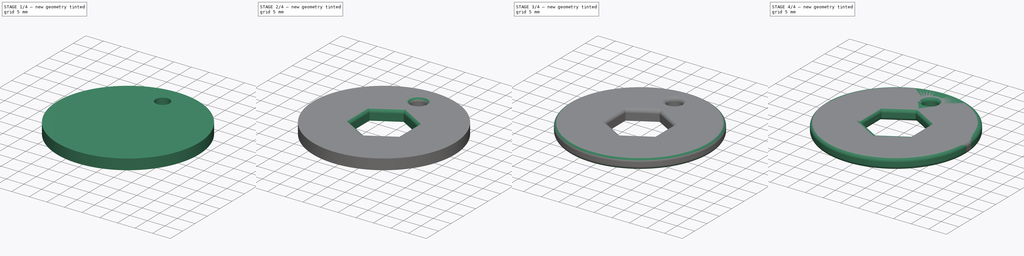
[diagram: build sequence overview — one tinted view per stage of 4, left to right]
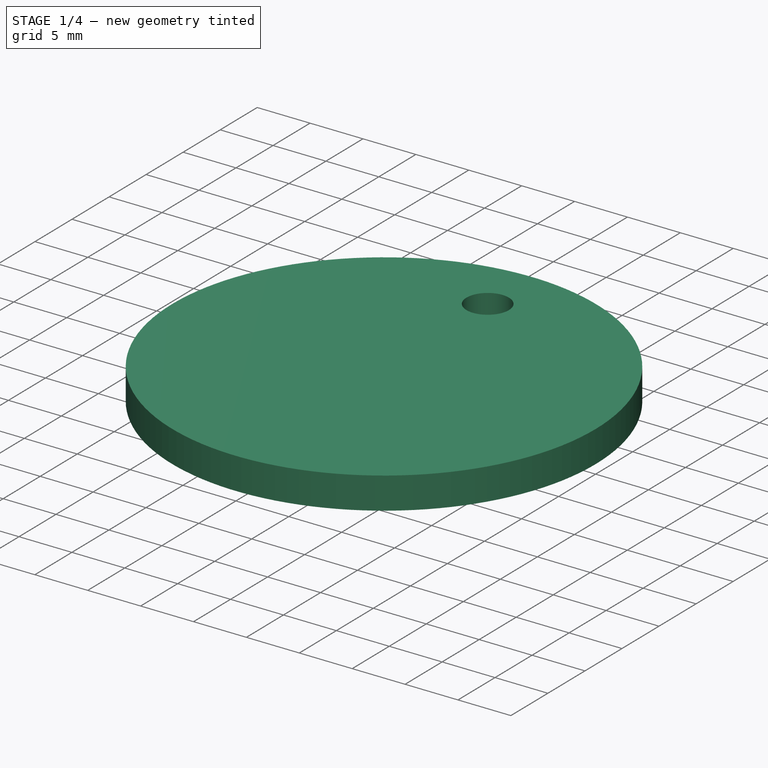
[diagram: stage 1 of 4 — iso view after this stage's code; geometry added in this stage tinted green]
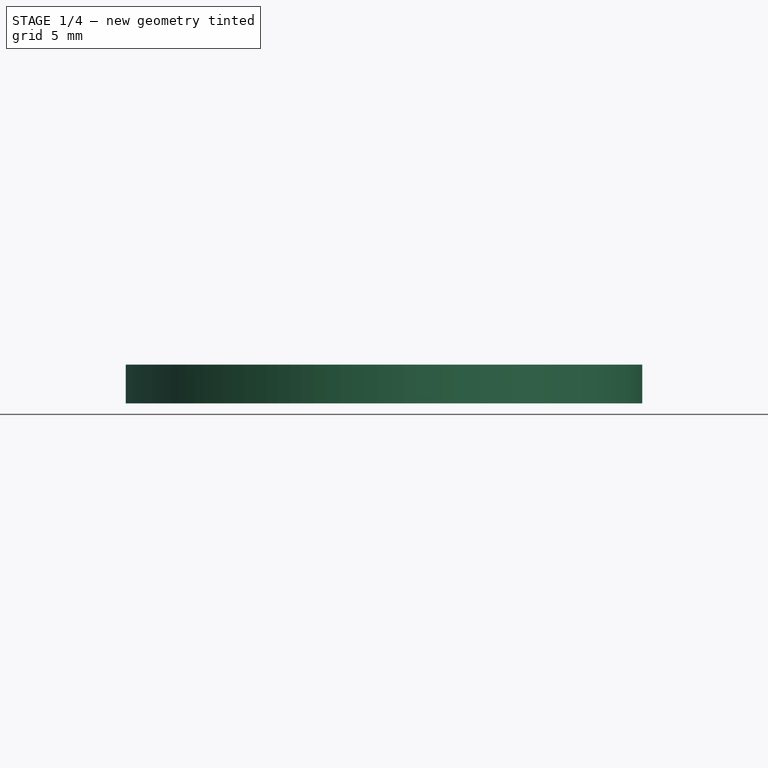
[diagram: stage 1 of 4 — front view after this stage's code; geometry added in this stage tinted green]
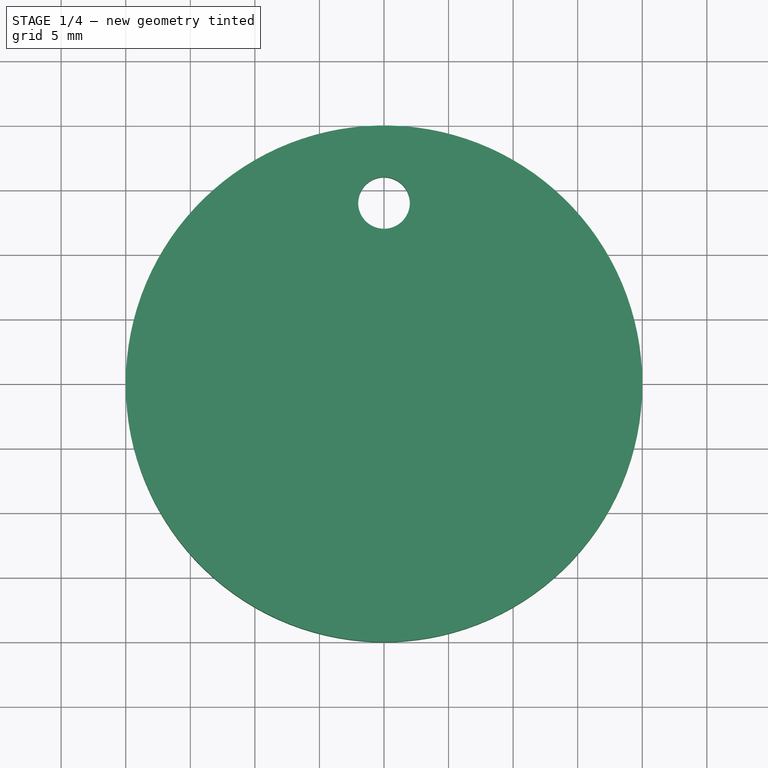
[diagram: stage 1 of 4 — top view after this stage's code; geometry added in this stage tinted green]
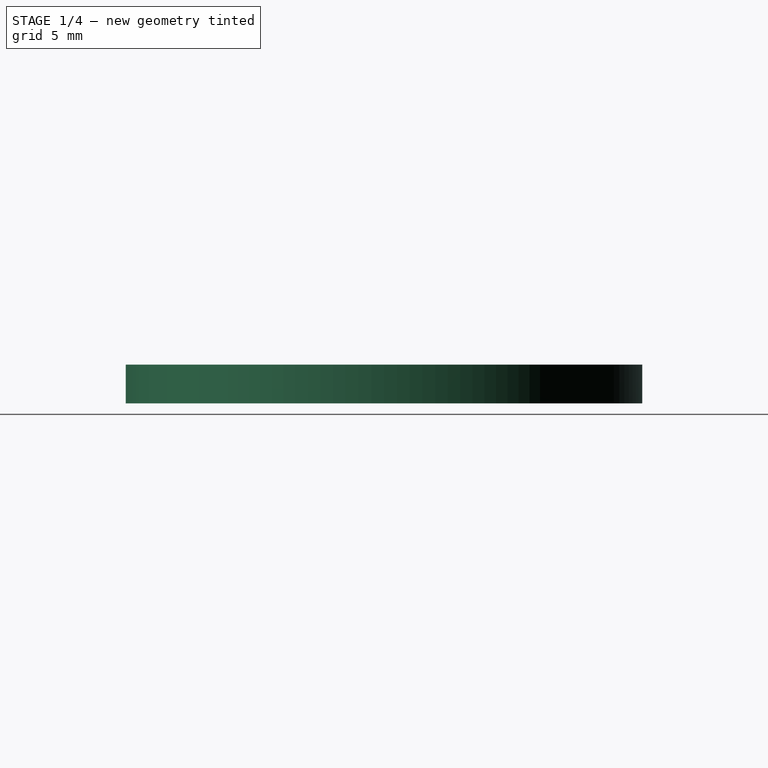
[diagram: stage 1 of 4 — right view after this stage's code; geometry added in this stage tinted green]
FCSTD DOCUMENT  (FreeCAD 0.15R4671 (Git))
Label: T5-ej1
License: All rights reserved
LicenseURL: http://es.wikipedia.org/wiki/Todos_los_derechos_reservados
objects: PartDesign::Fillet×6, Part::Cylinder×2, Part::Cut×2, Part::Feature×2, Sketcher::SketchObject×1, PartDesign::Pocket×1, App::DocumentObjectGroup×1
note: 15 computed .brp shape members not serialized (recipe doc carries the construction recipe); baked Part::Feature solids carry a one-line shape summary decoded from their .brp

FEATURE [Part::Cylinder] Cylinder  label="ficha"
  Angle = 360
  Height = 3
  Radius = 20
FEATURE [Part::Cylinder] Cylinder001  label="Cilindro"
  Angle = 360
  Height = 5
  Placement = pos=(0,14,0) rot=(0,0,1;0rad)
  Radius = 2
FEATURE [Part::Cut] Cut
  Base = -> Cylinder
  Tool = -> Cylinder001
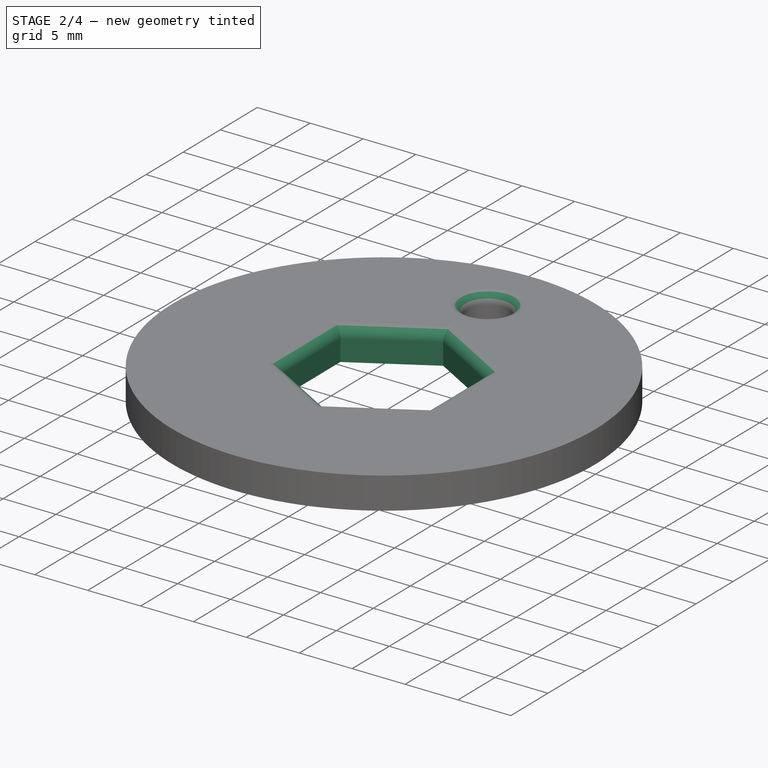
[diagram: stage 2 of 4 — iso view after this stage's code; geometry added in this stage tinted green]
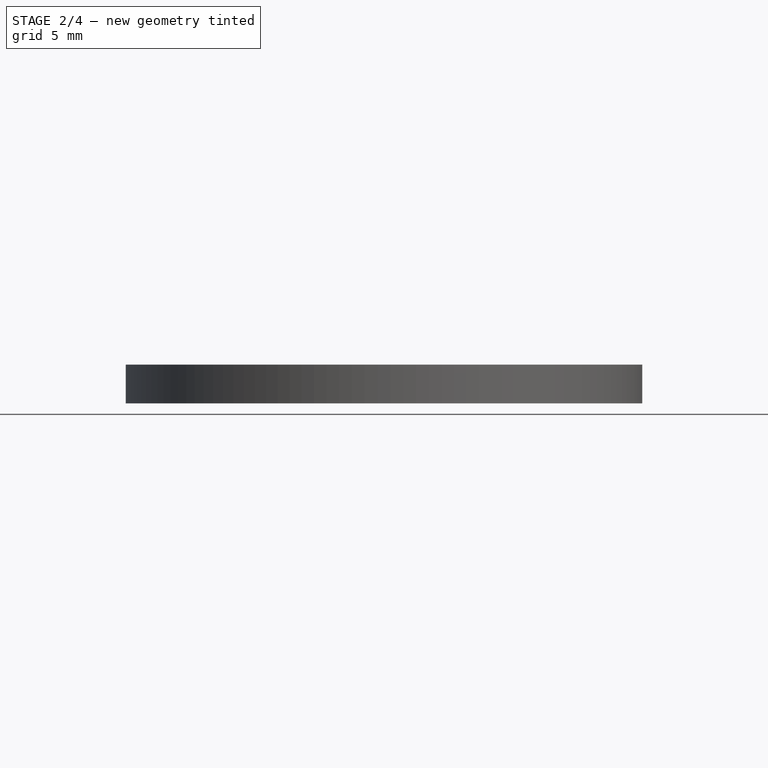
[diagram: stage 2 of 4 — front view after this stage's code; geometry added in this stage tinted green]
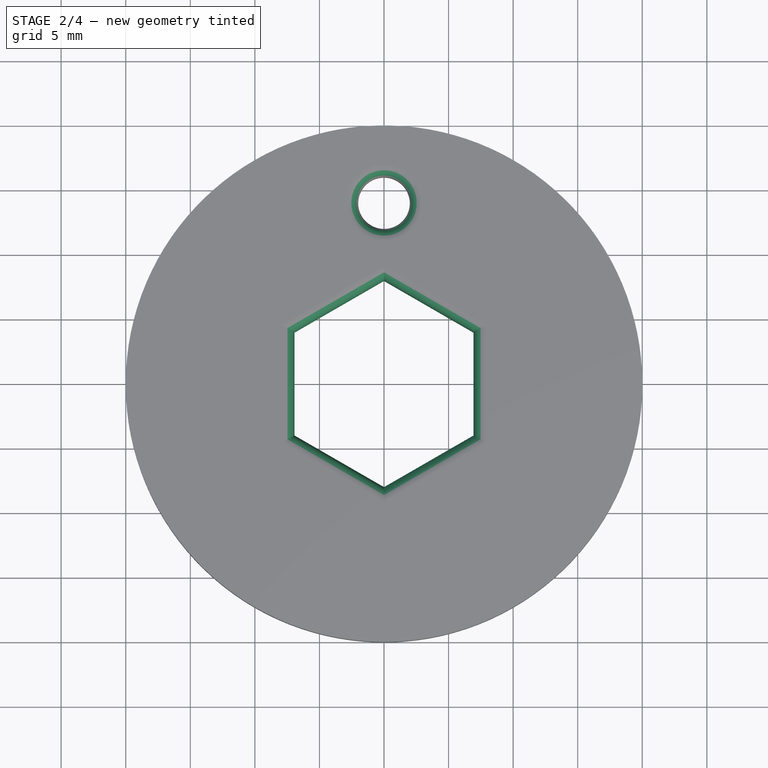
[diagram: stage 2 of 4 — top view after this stage's code; geometry added in this stage tinted green]
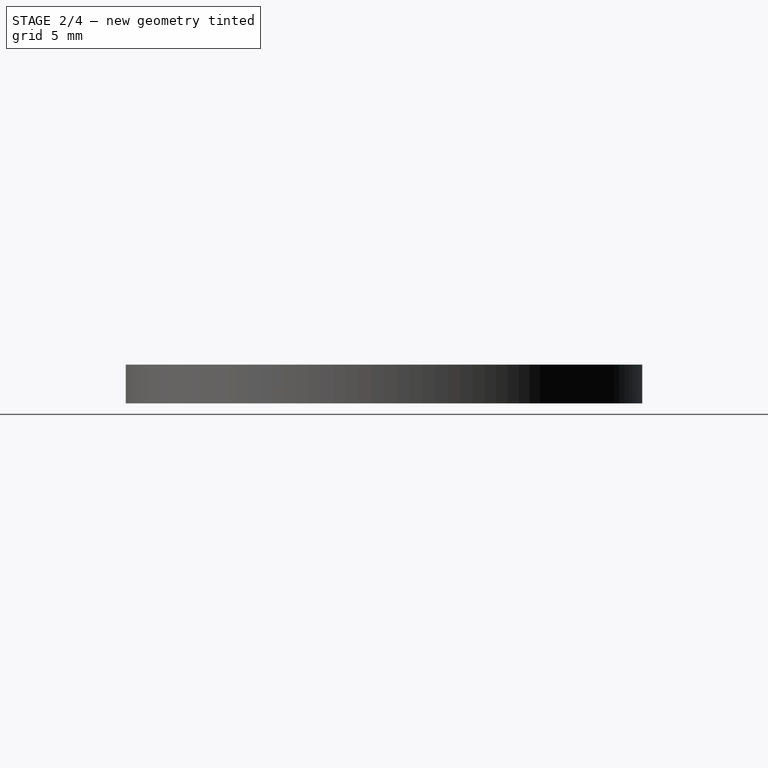
[diagram: stage 2 of 4 — right view after this stage's code; geometry added in this stage tinted green]
FEATURE [Sketcher::SketchObject] Sketch
  Placement = pos=(0,0,3) rot=(0,0,1;0rad)
  Support = -> Cut [Face2]
  sketch-geometry (7):
    g0: LineSegment StartX=-6.9282 StartY=-4 StartZ=0 EndX=0 EndY=-8 EndZ=0
    g1: LineSegment StartX=0 StartY=-8 StartZ=0 EndX=6.9282 EndY=-4 EndZ=0
    g2: LineSegment StartX=6.9282 StartY=-4 StartZ=0 EndX=6.9282 EndY=4 EndZ=0
    g3: LineSegment StartX=6.9282 StartY=4 StartZ=0 EndX=0 EndY=8 EndZ=0
    g4: LineSegment StartX=0 StartY=8 StartZ=0 EndX=-6.9282 EndY=4 EndZ=0
    g5: LineSegment StartX=-6.9282 StartY=4 StartZ=0 EndX=-6.9282 EndY=-4 EndZ=0
    g6: Circle [constr] CenterX=0 CenterY=0 CenterZ=0 NormalX=0 NormalY=0 NormalZ=1 Radius=8
  constraints (16):
    c: Coincident(g0,g1)
    c: Coincident(g1,g2)
    c: Coincident(g2,g3)
    c: Coincident(g3,g4)
    c: Coincident(g4,g5)
    c: Coincident(g5,g0)
    c: Equal(g0, g1-g5) x5
    c: PointOnObject(g0,g6)
    c: PointOnObject(g1,g6)
    c: PointOnObject(g2,g6)
    c: PointOnObject(g3,g6)
    c: PointOnObject(g4,g6)
    c: PointOnObject(g5,g6)
    c: Coincident(g6,g-1)
    c: Radius(g6) = 8
    c: PointOnObject(g3,g-2)
FEATURE [PartDesign::Pocket] Pocket
  Length = 5
  Sketch = -> Sketch
  Type = 1
FEATURE [PartDesign::Fillet] Fillet
  Base = -> Pocket [Edge4,Edge9,Edge8,Edge7,Edge6,Edge5]
  Radius = 1
FEATURE [PartDesign::Fillet] Fillet001
  Base = -> Fillet [Edge8]
  Radius = 1
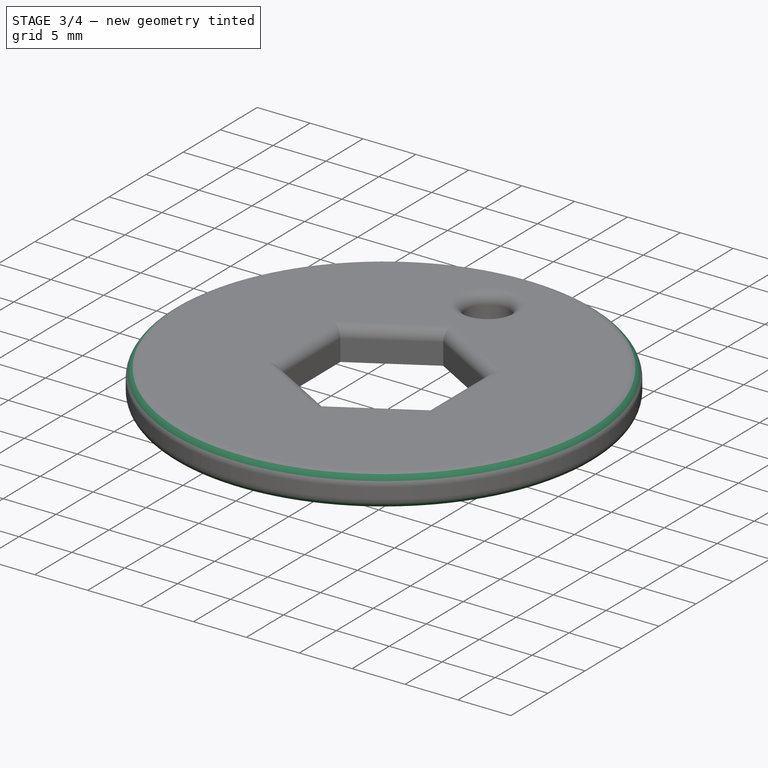
[diagram: stage 3 of 4 — iso view after this stage's code; geometry added in this stage tinted green]
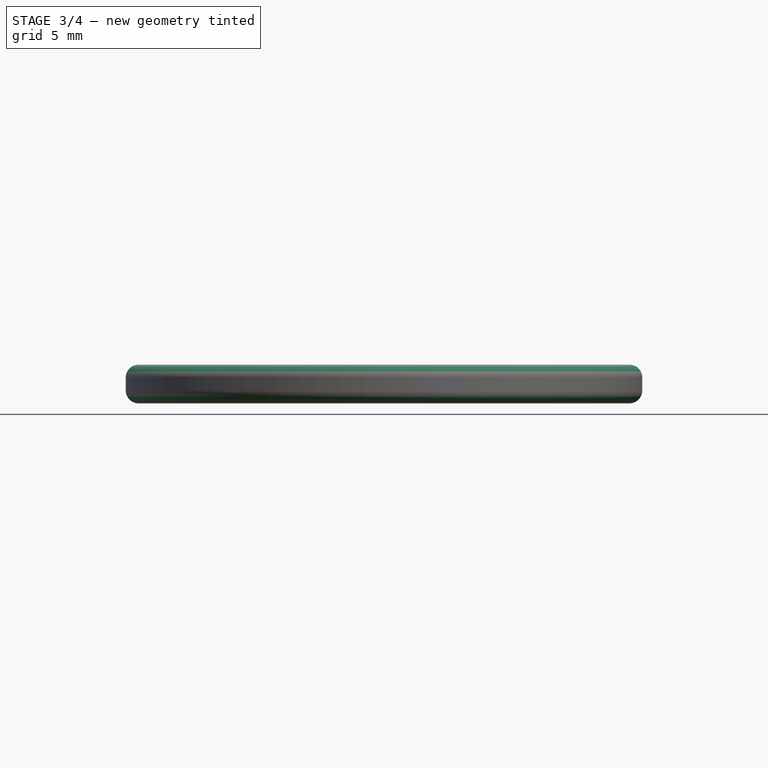
[diagram: stage 3 of 4 — front view after this stage's code; geometry added in this stage tinted green]
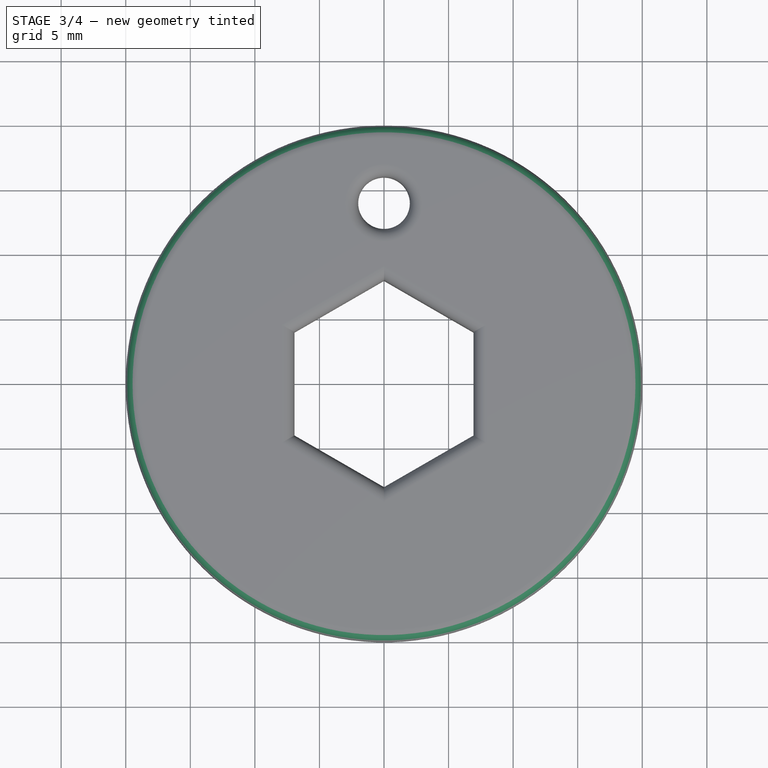
[diagram: stage 3 of 4 — top view after this stage's code; geometry added in this stage tinted green]
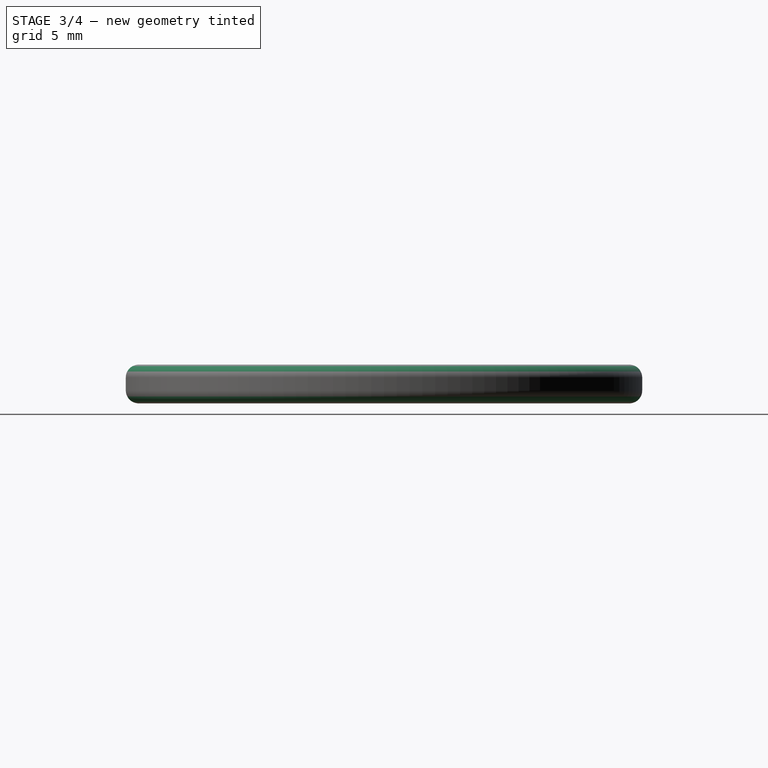
[diagram: stage 3 of 4 — right view after this stage's code; geometry added in this stage tinted green]
FEATURE [PartDesign::Fillet] Fillet002
  Base = -> Fillet001 [Edge8]
  Radius = 1
FEATURE [PartDesign::Fillet] Fillet003
  Base = -> Fillet002 [Edge26]
  Radius = 1
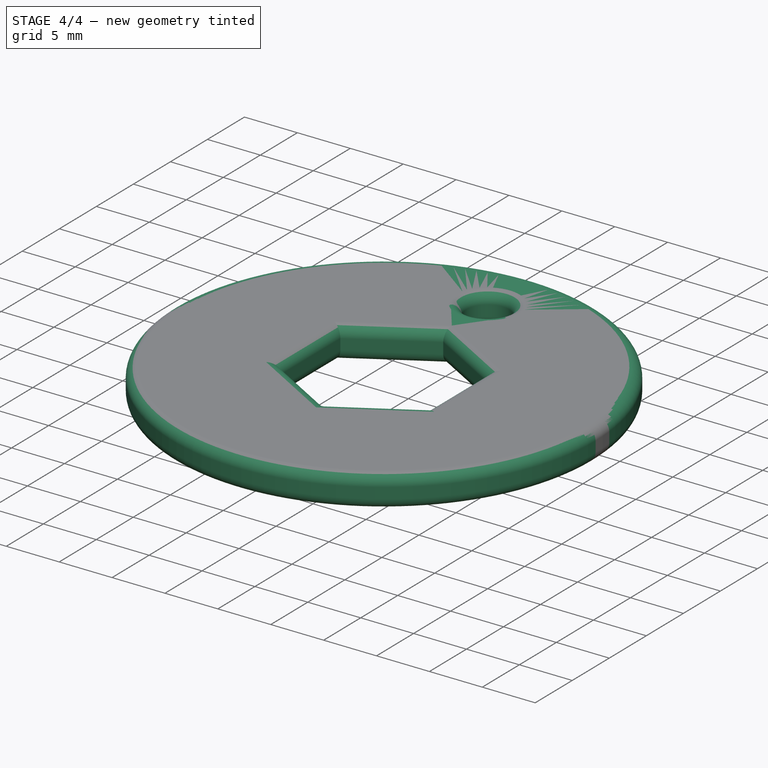
[diagram: stage 4 of 4 — iso view after this stage's code; geometry added in this stage tinted green]
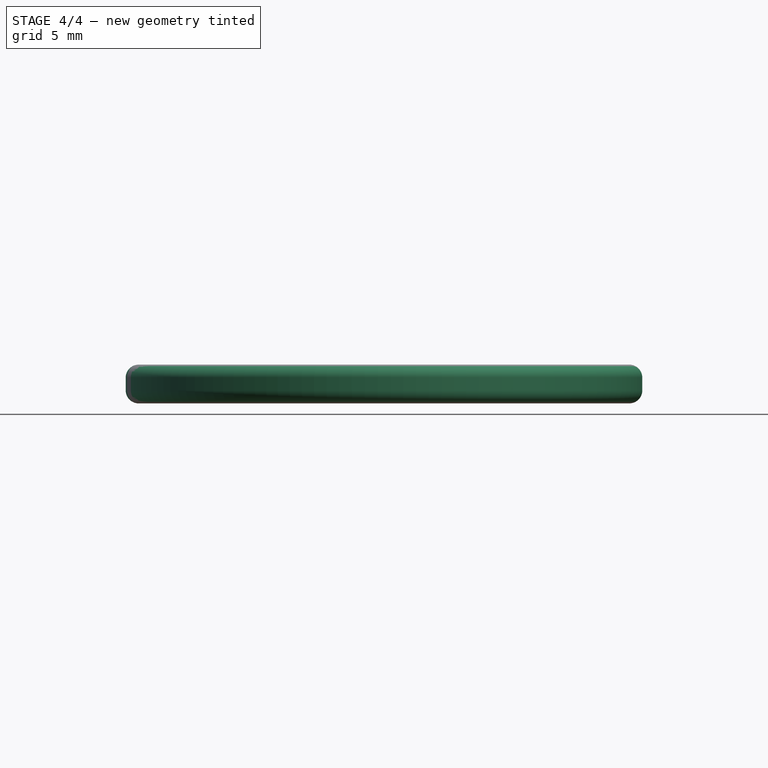
[diagram: stage 4 of 4 — front view after this stage's code; geometry added in this stage tinted green]
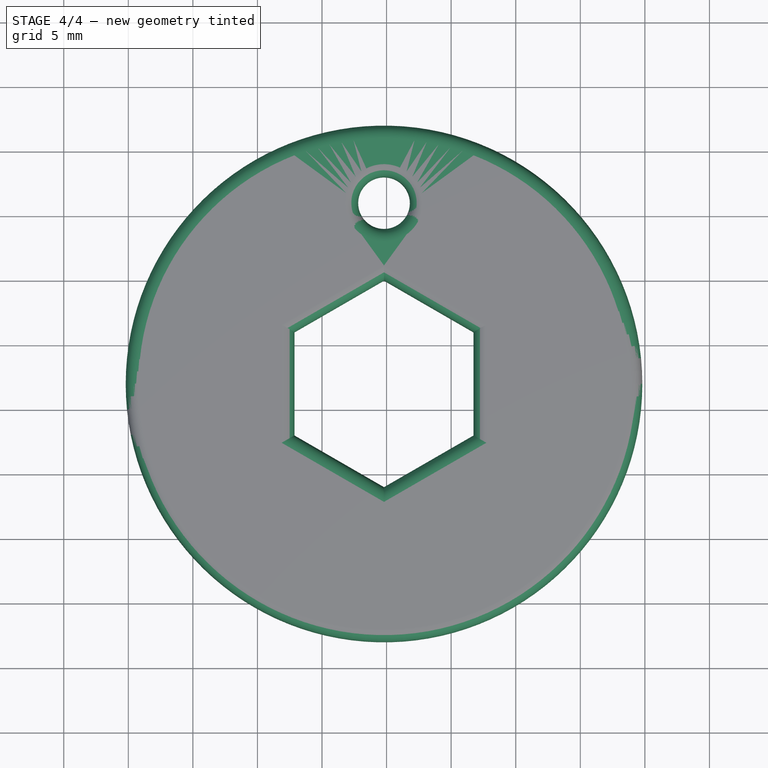
[diagram: stage 4 of 4 — top view after this stage's code; geometry added in this stage tinted green]
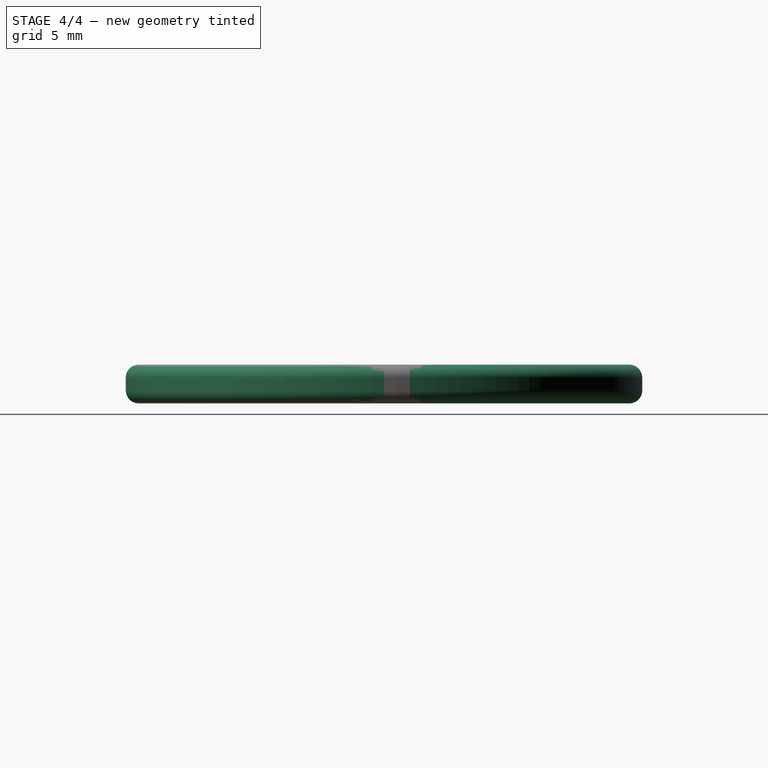
[diagram: stage 4 of 4 — right view after this stage's code; geometry added in this stage tinted green]
FEATURE [PartDesign::Fillet] Fillet004
  Base = -> Fillet003 [Edge8,Edge13,Edge12,Edge11,Edge10,Edge9]
  Radius = 1
FEATURE [PartDesign::Fillet] Fillet005
  Base = -> Fillet004 [Edge8]
  Radius = 1
FEATURE [Part::Cut] Cut001  label="Ficha"
  Base = -> Fillet005
  Placement = pos=(-0.2,2,0) rot=(0,0,1;0rad)
  Tool = -> Cylinder001
FEATURE [App::DocumentObjectGroup] Grupo
FEATURE [Part::Feature] Sweep  label="key-ring-model-1"
  Placement = pos=(-1.2,24.7546,1.6391) rot=(0.333333,0.881918,0.333333;1.69612rad)
  shape: bbox 3.31 x 27.02 x 26.33 mm, 4 faces (baked)
FEATURE [Part::Feature] Cut002  label="key-model-1"
  Placement = pos=(-5.46976,31.0266,0) rot=(0,0,1;0.517888rad)
  shape: bbox 49.82 x 36.6 x 2.3 mm, 44 faces (baked)
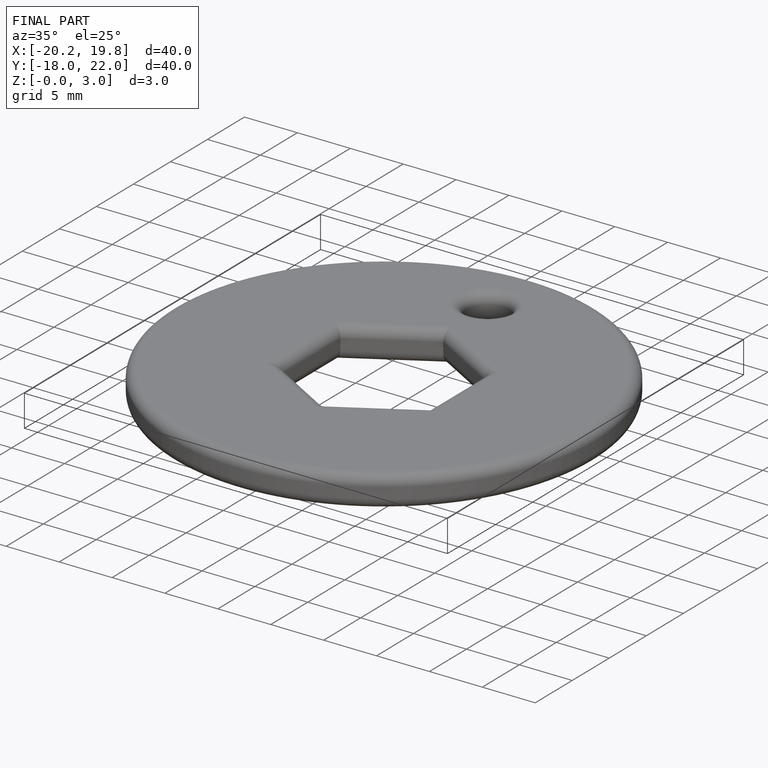
[diagram: finished part — iso view with bounding-box wireframe]
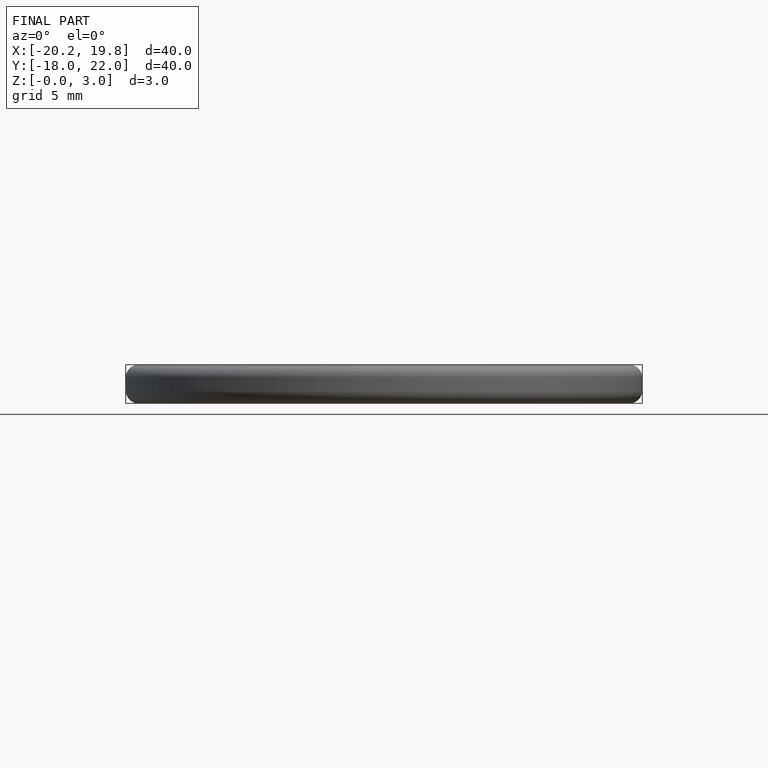
[diagram: finished part — front view with bounding-box wireframe]
